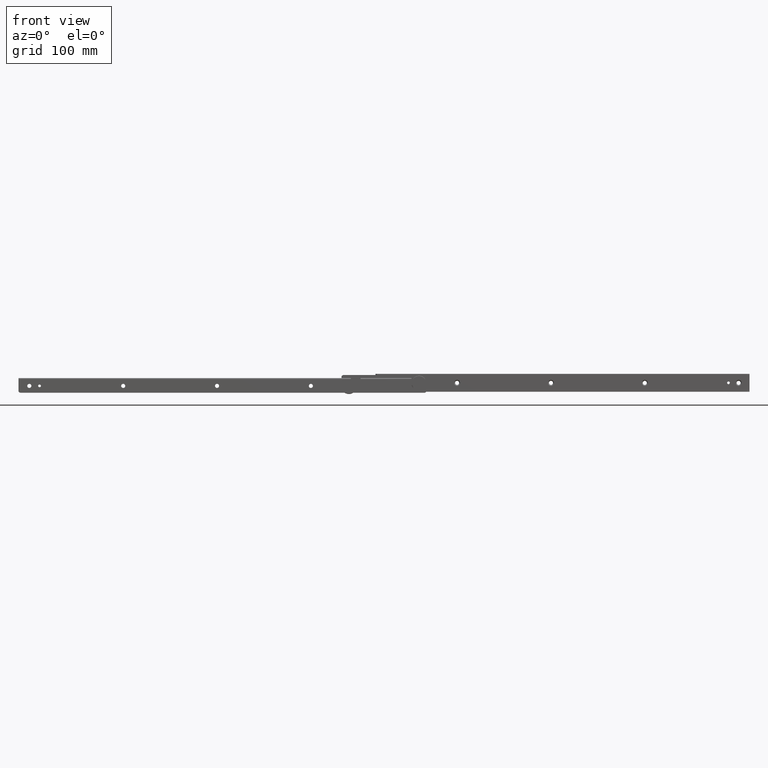
[diagram: clean part render]
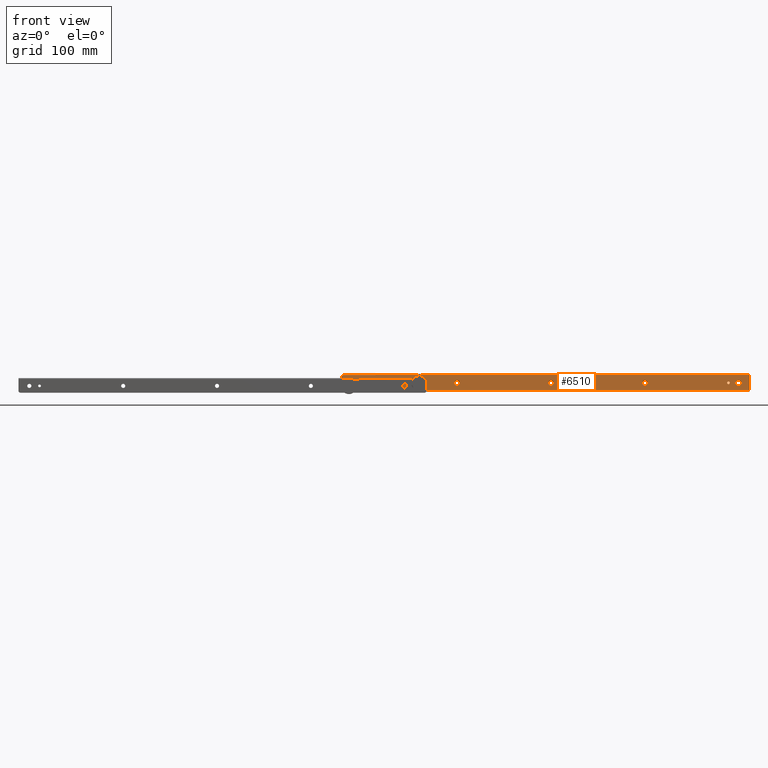
[diagram: same view with one face highlighted and labeled with its STEP entity id]
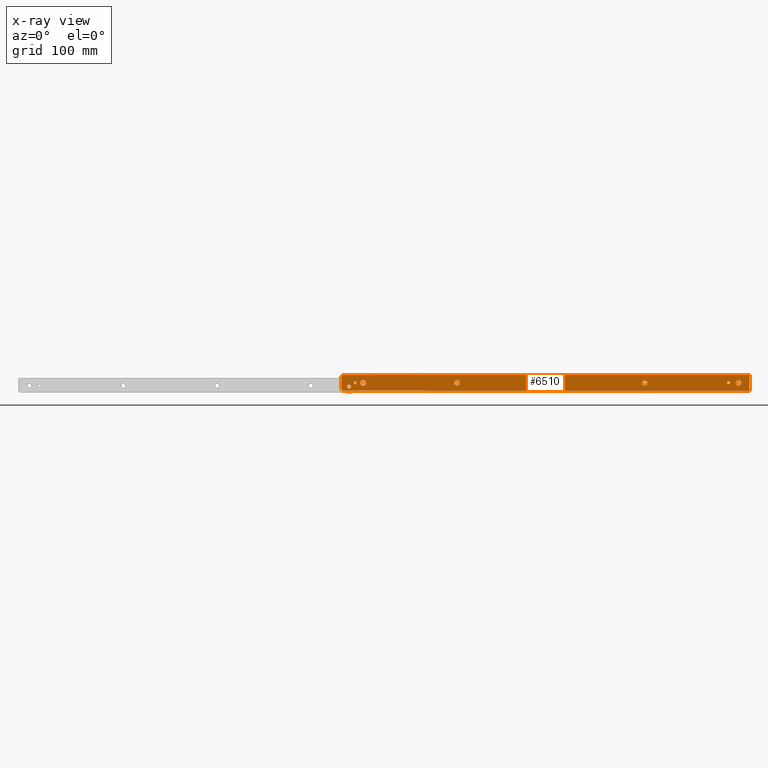
[diagram: x-ray of the same camera — body ghosted, the highlighted face saturated]
A machine part, front view. The second image highlights one B-rep face of the part: STEP entity #6510.
The next image is the same camera in x-ray: the body ghosted, the highlighted face saturated — about 0% of this face is hidden behind the body in this view.
In plain terms, the highlighted face is a freeform B-spline surface patch.
Its self-contained STEP definition (entity closure, byte-faithful):
#4188=CARTESIAN_POINT('',(27.733255280629191,-1.600000001199631,-7.633750417427490));
#4189=VERTEX_POINT('',#4188);
#4195=CARTESIAN_POINT('',(32.0,-1.599999999999910,-11.399999999999800));
#4196=VERTEX_POINT('',#4195);
#4197=CARTESIAN_POINT('',(32.0,-1.599999999999910,-11.399999999999800));
#4198=CARTESIAN_POINT('',(28.204396034349859,-1.599999999999911,-11.399999999999798));
#4199=CARTESIAN_POINT('',(27.733255280629191,-1.600000001199631,-7.633750417427490));
#4207=(BOUNDED_CURVE()B_SPLINE_CURVE(2,(#4197,#4198,#4199),.UNSPECIFIED.,.F.,.U.)B_SPLINE_CURVE_WITH_KNOTS((3,3),(0.500000000000000,0.728526070368158),.UNSPECIFIED.)CURVE()GEOMETRIC_REPRESENTATION_ITEM()RATIONAL_B_SPLINE_CURVE((1.0,0.732265054668323,0.954005428991700))REPRESENTATION_ITEM(''));
#4208=EDGE_CURVE('',#4196,#4189,#4207,.T.);
#4210=CARTESIAN_POINT('',(36.299836272195890,-1.600000004000267,-7.062475870950351));
#4211=VERTEX_POINT('',#4210);
#4212=CARTESIAN_POINT('',(36.299836272195890,-1.600000004000267,-7.062475870950351));
#4213=CARTESIAN_POINT('',(36.299999999999997,-1.599999999999910,-7.081237565091199));
#4214=CARTESIAN_POINT('',(36.299999999999997,-1.599999999999910,-7.099999999999799));
#4215=CARTESIAN_POINT('',(36.299999999999997,-1.599999999999911,-11.399999999999798));
#4216=CARTESIAN_POINT('',(32.0,-1.599999999999910,-11.399999999999800));
#4224=(BOUNDED_CURVE()B_SPLINE_CURVE(2,(#4212,#4213,#4214,#4215,#4216),.UNSPECIFIED.,.F.,.U.)B_SPLINE_CURVE_WITH_KNOTS((3,2,3),(0.248460103503857,0.250000000000000,0.500000000000000),.UNSPECIFIED.)CURVE()GEOMETRIC_REPRESENTATION_ITEM()RATIONAL_B_SPLINE_CURVE((0.996414023098886,0.998195899034421,1.0,0.707106781186547,1.0))REPRESENTATION_ITEM(''));
#4225=EDGE_CURVE('',#4211,#4196,#4224,.T.);
#4305=CARTESIAN_POINT('',(32.0,-1.599999999999910,-2.799999999999799));
#4306=VERTEX_POINT('',#4305);
#4307=CARTESIAN_POINT('',(32.0,-1.599999999999910,-2.799999999999799));
#4308=CARTESIAN_POINT('',(36.262638153256646,-1.599999999999910,-2.799999999999800));
#4309=CARTESIAN_POINT('',(36.299836272195897,-1.600000004000267,-7.062475870950351));
#4317=(BOUNDED_CURVE()B_SPLINE_CURVE(2,(#4307,#4308,#4309),.UNSPECIFIED.,.F.,.U.)B_SPLINE_CURVE_WITH_KNOTS((3,3),(0.0,0.248460103503857),.UNSPECIFIED.)CURVE()GEOMETRIC_REPRESENTATION_ITEM()RATIONAL_B_SPLINE_CURVE((1.0,0.708910882152127,0.996414023098886))REPRESENTATION_ITEM(''));
#4318=EDGE_CURVE('',#4306,#4211,#4317,.T.);
#4320=CARTESIAN_POINT('',(27.733255280629191,-1.600000001199631,-7.633750417427490));
#4321=CARTESIAN_POINT('',(27.700000000000003,-1.599999999999910,-7.367911196855158));
#4322=CARTESIAN_POINT('',(27.699999999999999,-1.599999999999910,-7.099999999999799));
#4323=CARTESIAN_POINT('',(27.700000000000006,-1.599999999999911,-2.799999999999800));
#4324=CARTESIAN_POINT('',(32.0,-1.599999999999910,-2.799999999999799));
#4332=(BOUNDED_CURVE()B_SPLINE_CURVE(2,(#4320,#4321,#4322,#4323,#4324),.UNSPECIFIED.,.F.,.U.)B_SPLINE_CURVE_WITH_KNOTS((3,2,3),(0.728526070368159,0.750000000000000,1.0),.UNSPECIFIED.)CURVE()GEOMETRIC_REPRESENTATION_ITEM()RATIONAL_B_SPLINE_CURVE((0.954005428991701,0.974841726518226,1.0,0.707106781186547,1.0))REPRESENTATION_ITEM(''));
#4333=EDGE_CURVE('',#4189,#4306,#4332,.T.);
#4374=CARTESIAN_POINT('',(165.733255280629210,-1.600000001199630,-7.633750417427690));
#4375=VERTEX_POINT('',#4374);
#4381=CARTESIAN_POINT('',(170.0,-1.599999999999910,-11.400000000000000));
#4382=VERTEX_POINT('',#4381);
#4383=CARTESIAN_POINT('',(170.0,-1.599999999999910,-11.400000000000000));
#4384=CARTESIAN_POINT('',(166.204396034349940,-1.599999999999911,-11.399999999999999));
#4385=CARTESIAN_POINT('',(165.733255280629210,-1.600000001199631,-7.633750417427690));
#4393=(BOUNDED_CURVE()B_SPLINE_CURVE(2,(#4383,#4384,#4385),.UNSPECIFIED.,.F.,.U.)B_SPLINE_CURVE_WITH_KNOTS((3,3),(0.500000000000000,0.728526070368158),.UNSPECIFIED.)CURVE()GEOMETRIC_REPRESENTATION_ITEM()RATIONAL_B_SPLINE_CURVE((1.0,0.732265054668323,0.954005428991700))REPRESENTATION_ITEM(''));
#4394=EDGE_CURVE('',#4382,#4375,#4393,.T.);
#4396=CARTESIAN_POINT('',(174.299836272195900,-1.600000004000269,-7.062475870950552));
#4397=VERTEX_POINT('',#4396);
#4398=CARTESIAN_POINT('',(174.299836272195850,-1.600000004000269,-7.062475870950552));
#4399=CARTESIAN_POINT('',(174.300000000000070,-1.599999999999910,-7.081237565091401));
#4400=CARTESIAN_POINT('',(174.300000000000010,-1.599999999999910,-7.100000000000001));
#4401=CARTESIAN_POINT('',(174.299999999999950,-1.599999999999911,-11.399999999999999));
#4402=CARTESIAN_POINT('',(170.0,-1.599999999999910,-11.400000000000000));
#4410=(BOUNDED_CURVE()B_SPLINE_CURVE(2,(#4398,#4399,#4400,#4401,#4402),.UNSPECIFIED.,.F.,.U.)B_SPLINE_CURVE_WITH_KNOTS((3,2,3),(0.248460103503857,0.250000000000000,0.500000000000000),.UNSPECIFIED.)CURVE()GEOMETRIC_REPRESENTATION_ITEM()RATIONAL_B_SPLINE_CURVE((0.996414023098886,0.998195899034421,1.0,0.707106781186547,1.0))REPRESENTATION_ITEM(''));
#4411=EDGE_CURVE('',#4397,#4382,#4410,.T.);
#4491=CARTESIAN_POINT('',(170.0,-1.599999999999910,-2.800000000000000));
#4492=VERTEX_POINT('',#4491);
#4493=CARTESIAN_POINT('',(170.0,-1.599999999999910,-2.800000000000000));
#4494=CARTESIAN_POINT('',(174.262638153256740,-1.599999999999910,-2.800000000000000));
#4495=CARTESIAN_POINT('',(174.299836272195880,-1.600000004000270,-7.062475870950552));
#4503=(BOUNDED_CURVE()B_SPLINE_CURVE(2,(#4493,#4494,#4495),.UNSPECIFIED.,.F.,.U.)B_SPLINE_CURVE_WITH_KNOTS((3,3),(0.0,0.248460103503857),.UNSPECIFIED.)CURVE()GEOMETRIC_REPRESENTATION_ITEM()RATIONAL_B_SPLINE_CURVE((1.0,0.708910882152127,0.996414023098886))REPRESENTATION_ITEM(''));
#4504=EDGE_CURVE('',#4492,#4397,#4503,.T.);
#4506=CARTESIAN_POINT('',(165.733255280629180,-1.600000001199631,-7.633750417427690));
#4507=CARTESIAN_POINT('',(165.699999999999990,-1.599999999999910,-7.367911196855359));
#4508=CARTESIAN_POINT('',(165.699999999999990,-1.599999999999910,-7.100000000000001));
#4509=CARTESIAN_POINT('',(165.699999999999960,-1.599999999999911,-2.800000000000000));
#4510=CARTESIAN_POINT('',(170.0,-1.599999999999910,-2.800000000000000));
#4518=(BOUNDED_CURVE()B_SPLINE_CURVE(2,(#4506,#4507,#4508,#4509,#4510),.UNSPECIFIED.,.F.,.U.)B_SPLINE_CURVE_WITH_KNOTS((3,2,3),(0.728526070368159,0.750000000000000,1.0),.UNSPECIFIED.)CURVE()GEOMETRIC_REPRESENTATION_ITEM()RATIONAL_B_SPLINE_CURVE((0.954005428991701,0.974841726518226,1.0,0.707106781186547,1.0))REPRESENTATION_ITEM(''));
#4519=EDGE_CURVE('',#4375,#4492,#4518,.T.);
#4560=CARTESIAN_POINT('',(303.733255280629180,-1.600000001199630,-7.633750417427690));
#4561=VERTEX_POINT('',#4560);
#4567=CARTESIAN_POINT('',(308.0,-1.599999999999910,-11.400000000000000));
#4568=VERTEX_POINT('',#4567);
#4569=CARTESIAN_POINT('',(308.0,-1.599999999999910,-11.400000000000000));
#4570=CARTESIAN_POINT('',(304.204396034349880,-1.599999999999911,-11.399999999999999));
#4571=CARTESIAN_POINT('',(303.733255280629120,-1.600000001199631,-7.633750417427690));
#4579=(BOUNDED_CURVE()B_SPLINE_CURVE(2,(#4569,#4570,#4571),.UNSPECIFIED.,.F.,.U.)B_SPLINE_CURVE_WITH_KNOTS((3,3),(0.500000000000000,0.728526070368158),.UNSPECIFIED.)CURVE()GEOMETRIC_REPRESENTATION_ITEM()RATIONAL_B_SPLINE_CURVE((1.0,0.732265054668323,0.954005428991700))REPRESENTATION_ITEM(''));
#4580=EDGE_CURVE('',#4568,#4561,#4579,.T.);
#4582=CARTESIAN_POINT('',(312.299836272195880,-1.600000004000258,-7.062475870950553));
#4583=VERTEX_POINT('',#4582);
#4584=CARTESIAN_POINT('',(312.299836272195930,-1.600000004000258,-7.062475870950553));
#4585=CARTESIAN_POINT('',(312.300000000000130,-1.599999999999911,-7.081237565091401));
#4586=CARTESIAN_POINT('',(312.300000000000010,-1.599999999999910,-7.100000000000001));
#4587=CARTESIAN_POINT('',(312.300000000000070,-1.599999999999911,-11.399999999999999));
#4588=CARTESIAN_POINT('',(308.0,-1.599999999999910,-11.400000000000000));
#4596=(BOUNDED_CURVE()B_SPLINE_CURVE(2,(#4584,#4585,#4586,#4587,#4588),.UNSPECIFIED.,.F.,.U.)B_SPLINE_CURVE_WITH_KNOTS((3,2,3),(0.248460103503857,0.250000000000000,0.500000000000000),.UNSPECIFIED.)CURVE()GEOMETRIC_REPRESENTATION_ITEM()RATIONAL_B_SPLINE_CURVE((0.996414023098886,0.998195899034421,1.0,0.707106781186547,1.0))REPRESENTATION_ITEM(''));
#4597=EDGE_CURVE('',#4583,#4568,#4596,.T.);
#4677=CARTESIAN_POINT('',(308.0,-1.599999999999910,-2.800000000000000));
#4678=VERTEX_POINT('',#4677);
#4679=CARTESIAN_POINT('',(308.0,-1.599999999999910,-2.800000000000000));
#4680=CARTESIAN_POINT('',(312.262638153256660,-1.599999999999910,-2.800000000000001));
#4681=CARTESIAN_POINT('',(312.299836272195880,-1.600000004000258,-7.062475870950553));
#4689=(BOUNDED_CURVE()B_SPLINE_CURVE(2,(#4679,#4680,#4681),.UNSPECIFIED.,.F.,.U.)B_SPLINE_CURVE_WITH_KNOTS((3,3),(0.0,0.248460103503857),.UNSPECIFIED.)CURVE()GEOMETRIC_REPRESENTATION_ITEM()RATIONAL_B_SPLINE_CURVE((1.0,0.708910882152127,0.996414023098886))REPRESENTATION_ITEM(''));
#4690=EDGE_CURVE('',#4678,#4583,#4689,.T.);
#4692=CARTESIAN_POINT('',(303.733255280629120,-1.600000001199631,-7.633750417427690));
#4693=CARTESIAN_POINT('',(303.699999999999990,-1.599999999999910,-7.367911196855359));
#4694=CARTESIAN_POINT('',(303.699999999999990,-1.599999999999910,-7.100000000000001));
#4695=CARTESIAN_POINT('',(303.700000000000050,-1.599999999999911,-2.800000000000000));
#4696=CARTESIAN_POINT('',(308.0,-1.599999999999910,-2.800000000000000));
#4704=(BOUNDED_CURVE()B_SPLINE_CURVE(2,(#4692,#4693,#4694,#4695,#4696),.UNSPECIFIED.,.F.,.U.)B_SPLINE_CURVE_WITH_KNOTS((3,2,3),(0.728526070368159,0.750000000000000,1.0),.UNSPECIFIED.)CURVE()GEOMETRIC_REPRESENTATION_ITEM()RATIONAL_B_SPLINE_CURVE((0.954005428991701,0.974841726518226,1.0,0.707106781186547,1.0))REPRESENTATION_ITEM(''));
#4705=EDGE_CURVE('',#4561,#4678,#4704,.T.);
#4746=CARTESIAN_POINT('',(441.733255280629180,-1.600000001199608,-7.633750417427683));
#4747=VERTEX_POINT('',#4746);
#4753=CARTESIAN_POINT('',(446.0,-1.599999999999910,-11.400000000000000));
#4754=VERTEX_POINT('',#4753);
#4755=CARTESIAN_POINT('',(446.0,-1.599999999999910,-11.400000000000000));
#4756=CARTESIAN_POINT('',(442.204396034349880,-1.599999999999911,-11.399999999999999));
#4757=CARTESIAN_POINT('',(441.733255280629240,-1.600000001199608,-7.633750417427683));
#4765=(BOUNDED_CURVE()B_SPLINE_CURVE(2,(#4755,#4756,#4757),.UNSPECIFIED.,.F.,.U.)B_SPLINE_CURVE_WITH_KNOTS((3,3),(0.500000000000000,0.728526070368158),.UNSPECIFIED.)CURVE()GEOMETRIC_REPRESENTATION_ITEM()RATIONAL_B_SPLINE_CURVE((1.0,0.732265054668323,0.954005428991700))REPRESENTATION_ITEM(''));
#4766=EDGE_CURVE('',#4754,#4747,#4765,.T.);
#4768=CARTESIAN_POINT('',(450.299836272195880,-1.600000004000271,-7.062475870950552));
#4769=VERTEX_POINT('',#4768);
#4770=CARTESIAN_POINT('',(450.299836272195930,-1.600000004000271,-7.062475870950552));
#4771=CARTESIAN_POINT('',(450.299999999999950,-1.599999999999910,-7.081237565091401));
#4772=CARTESIAN_POINT('',(450.300000000000010,-1.599999999999910,-7.100000000000001));
#4773=CARTESIAN_POINT('',(450.299999999999950,-1.599999999999911,-11.399999999999999));
#4774=CARTESIAN_POINT('',(446.0,-1.599999999999910,-11.400000000000000));
#4782=(BOUNDED_CURVE()B_SPLINE_CURVE(2,(#4770,#4771,#4772,#4773,#4774),.UNSPECIFIED.,.F.,.U.)B_SPLINE_CURVE_WITH_KNOTS((3,2,3),(0.248460103503857,0.250000000000000,0.500000000000000),.UNSPECIFIED.)CURVE()GEOMETRIC_REPRESENTATION_ITEM()RATIONAL_B_SPLINE_CURVE((0.996414023098886,0.998195899034421,1.0,0.707106781186547,1.0))REPRESENTATION_ITEM(''));
#4783=EDGE_CURVE('',#4769,#4754,#4782,.T.);
#4863=CARTESIAN_POINT('',(446.0,-1.599999999999910,-2.800000000000000));
#4864=VERTEX_POINT('',#4863);
#4865=CARTESIAN_POINT('',(446.0,-1.599999999999910,-2.800000000000000));
#4866=CARTESIAN_POINT('',(450.262638153256720,-1.599999999999910,-2.800000000000000));
#4867=CARTESIAN_POINT('',(450.299836272195880,-1.600000004000272,-7.062475870950552));
#4875=(BOUNDED_CURVE()B_SPLINE_CURVE(2,(#4865,#4866,#4867),.UNSPECIFIED.,.F.,.U.)B_SPLINE_CURVE_WITH_KNOTS((3,3),(0.0,0.248460103503857),.UNSPECIFIED.)CURVE()GEOMETRIC_REPRESENTATION_ITEM()RATIONAL_B_SPLINE_CURVE((1.0,0.708910882152127,0.996414023098886))REPRESENTATION_ITEM(''));
#4876=EDGE_CURVE('',#4864,#4769,#4875,.T.);
#4878=CARTESIAN_POINT('',(441.733255280629240,-1.600000001199608,-7.633750417427683));
#4879=CARTESIAN_POINT('',(441.700000000000050,-1.599999999999910,-7.367911196855354));
#4880=CARTESIAN_POINT('',(441.699999999999990,-1.599999999999910,-7.100000000000001));
#4881=CARTESIAN_POINT('',(441.699999999999930,-1.599999999999911,-2.800000000000000));
#4882=CARTESIAN_POINT('',(446.0,-1.599999999999910,-2.800000000000000));
#4890=(BOUNDED_CURVE()B_SPLINE_CURVE(2,(#4878,#4879,#4880,#4881,#4882),.UNSPECIFIED.,.F.,.U.)B_SPLINE_CURVE_WITH_KNOTS((3,2,3),(0.728526070368159,0.750000000000000,1.0),.UNSPECIFIED.)CURVE()GEOMETRIC_REPRESENTATION_ITEM()RATIONAL_B_SPLINE_CURVE((0.954005428991702,0.974841726518226,1.0,0.707106781186547,1.0))REPRESENTATION_ITEM(''));
#4891=EDGE_CURVE('',#4747,#4864,#4890,.T.);
#4932=CARTESIAN_POINT('',(579.733255280629240,-1.600000001199665,-7.633750417427704));
#4933=VERTEX_POINT('',#4932);
#4939=CARTESIAN_POINT('',(584.0,-1.599999999999910,-11.400000000000000));
#4940=VERTEX_POINT('',#4939);
#4941=CARTESIAN_POINT('',(584.0,-1.599999999999910,-11.400000000000000));
#4942=CARTESIAN_POINT('',(580.204396034349880,-1.599999999999911,-11.399999999999999));
#4943=CARTESIAN_POINT('',(579.733255280629240,-1.600000001199665,-7.633750417427704));
#4951=(BOUNDED_CURVE()B_SPLINE_CURVE(2,(#4941,#4942,#4943),.UNSPECIFIED.,.F.,.U.)B_SPLINE_CURVE_WITH_KNOTS((3,3),(0.500000000000000,0.728526070368158),.UNSPECIFIED.)CURVE()GEOMETRIC_REPRESENTATION_ITEM()RATIONAL_B_SPLINE_CURVE((1.0,0.732265054668323,0.954005428991700))REPRESENTATION_ITEM(''));
#4952=EDGE_CURVE('',#4940,#4933,#4951,.T.);
#4954=CARTESIAN_POINT('',(588.299836272195760,-1.600000004000249,-7.062475870950552));
#4955=VERTEX_POINT('',#4954);
#4956=CARTESIAN_POINT('',(588.299836272195760,-1.600000004000248,-7.062475870950552));
#4957=CARTESIAN_POINT('',(588.299999999999950,-1.599999999999910,-7.081237565091399));
#4958=CARTESIAN_POINT('',(588.299999999999950,-1.599999999999910,-7.100000000000001));
#4959=CARTESIAN_POINT('',(588.299999999999950,-1.599999999999911,-11.399999999999999));
#4960=CARTESIAN_POINT('',(584.0,-1.599999999999910,-11.400000000000000));
#4968=(BOUNDED_CURVE()B_SPLINE_CURVE(2,(#4956,#4957,#4958,#4959,#4960),.UNSPECIFIED.,.F.,.U.)B_SPLINE_CURVE_WITH_KNOTS((3,2,3),(0.248460103503857,0.250000000000000,0.500000000000000),.UNSPECIFIED.)CURVE()GEOMETRIC_REPRESENTATION_ITEM()RATIONAL_B_SPLINE_CURVE((0.996414023098886,0.998195899034421,1.0,0.707106781186547,1.0))REPRESENTATION_ITEM(''));
#4969=EDGE_CURVE('',#4955,#4940,#4968,.T.);
#5049=CARTESIAN_POINT('',(584.0,-1.599999999999910,-2.800000000000000));
#5050=VERTEX_POINT('',#5049);
#5051=CARTESIAN_POINT('',(584.0,-1.599999999999910,-2.800000000000000));
#5052=CARTESIAN_POINT('',(588.262638153256600,-1.599999999999911,-2.800000000000001));
#5053=CARTESIAN_POINT('',(588.299836272195760,-1.600000004000249,-7.062475870950552));
#5061=(BOUNDED_CURVE()B_SPLINE_CURVE(2,(#5051,#5052,#5053),.UNSPECIFIED.,.F.,.U.)B_SPLINE_CURVE_WITH_KNOTS((3,3),(0.0,0.248460103503857),.UNSPECIFIED.)CURVE()GEOMETRIC_REPRESENTATION_ITEM()RATIONAL_B_SPLINE_CURVE((1.0,0.708910882152127,0.996414023098886))REPRESENTATION_ITEM(''));
#5062=EDGE_CURVE('',#5050,#4955,#5061,.T.);
#5064=CARTESIAN_POINT('',(579.733255280629240,-1.600000001199666,-7.633750417427704));
#5065=CARTESIAN_POINT('',(579.700000000000050,-1.599999999999910,-7.367911196855369));
#5066=CARTESIAN_POINT('',(579.700000000000050,-1.599999999999910,-7.100000000000001));
#5067=CARTESIAN_POINT('',(579.700000000000050,-1.599999999999911,-2.800000000000000));
#5068=CARTESIAN_POINT('',(584.0,-1.599999999999910,-2.800000000000000));
#5076=(BOUNDED_CURVE()B_SPLINE_CURVE(2,(#5064,#5065,#5066,#5067,#5068),.UNSPECIFIED.,.F.,.U.)B_SPLINE_CURVE_WITH_KNOTS((3,2,3),(0.728526070368158,0.750000000000000,1.0),.UNSPECIFIED.)CURVE()GEOMETRIC_REPRESENTATION_ITEM()RATIONAL_B_SPLINE_CURVE((0.954005428991700,0.974841726518225,1.0,0.707106781186547,1.0))REPRESENTATION_ITEM(''));
#5077=EDGE_CURVE('',#4933,#5050,#5076,.T.);
#5135=CARTESIAN_POINT('',(13.940906133999270,-1.599999999999935,-12.831454338917970));
#5136=VERTEX_POINT('',#5135);
#5142=CARTESIAN_POINT('',(10.999999999999760,-1.599999999999935,-9.649999999999800));
#5143=VERTEX_POINT('',#5142);
#5144=CARTESIAN_POINT('',(13.940906133999270,-1.599999999999935,-12.831454338917970));
#5145=CARTESIAN_POINT('',(13.949999999999759,-1.599999999999936,-12.715905822223709));
#5146=CARTESIAN_POINT('',(13.949999999999759,-1.599999999999935,-12.599999999999801));
#5147=CARTESIAN_POINT('',(13.949999999999761,-1.599999999999935,-9.649999999999800));
#5148=CARTESIAN_POINT('',(10.999999999999760,-1.599999999999935,-9.649999999999800));
#5156=(BOUNDED_CURVE()B_SPLINE_CURVE(2,(#5144,#5145,#5146,#5147,#5148),.UNSPECIFIED.,.F.,.U.)B_SPLINE_CURVE_WITH_KNOTS((3,2,3),(0.736331299872550,0.750000000000000,1.0),.UNSPECIFIED.)CURVE()GEOMETRIC_REPRESENTATION_ITEM()RATIONAL_B_SPLINE_CURVE((0.969723354585300,0.983986121690701,1.0,0.707106781186548,1.0))REPRESENTATION_ITEM(''));
#5157=EDGE_CURVE('',#5136,#5143,#5156,.T.);
#5159=CARTESIAN_POINT('',(8.059093866000250,-1.599999999999935,-12.368545661081630));
#5160=VERTEX_POINT('',#5159);
#5161=CARTESIAN_POINT('',(10.999999999999760,-1.599999999999935,-9.649999999999800));
#5162=CARTESIAN_POINT('',(8.273048061738681,-1.599999999999935,-9.649999999999800));
#5163=CARTESIAN_POINT('',(8.059093866000250,-1.599999999999935,-12.368545661081631));
#5171=(BOUNDED_CURVE()B_SPLINE_CURVE(2,(#5161,#5162,#5163),.UNSPECIFIED.,.F.,.U.)B_SPLINE_CURVE_WITH_KNOTS((3,3),(0.0,0.236331299872549),.UNSPECIFIED.)CURVE()GEOMETRIC_REPRESENTATION_ITEM()RATIONAL_B_SPLINE_CURVE((1.0,0.723120659495847,0.969723354585299))REPRESENTATION_ITEM(''));
#5172=EDGE_CURVE('',#5143,#5160,#5171,.T.);
#5218=CARTESIAN_POINT('',(10.999999999999760,-1.599999999999935,-15.549999999999800));
#5219=VERTEX_POINT('',#5218);
#5220=CARTESIAN_POINT('',(8.059093866000250,-1.599999999999936,-12.368545661081628));
#5221=CARTESIAN_POINT('',(8.049999999999761,-1.599999999999935,-12.484094177775885));
#5222=CARTESIAN_POINT('',(8.049999999999761,-1.599999999999935,-12.599999999999801));
#5223=CARTESIAN_POINT('',(8.049999999999761,-1.599999999999935,-15.549999999999795));
#5224=CARTESIAN_POINT('',(10.999999999999760,-1.599999999999935,-15.549999999999800));
#5232=(BOUNDED_CURVE()B_SPLINE_CURVE(2,(#5220,#5221,#5222,#5223,#5224),.UNSPECIFIED.,.F.,.U.)B_SPLINE_CURVE_WITH_KNOTS((3,2,3),(0.236331299872549,0.250000000000000,0.500000000000000),.UNSPECIFIED.)CURVE()GEOMETRIC_REPRESENTATION_ITEM()RATIONAL_B_SPLINE_CURVE((0.969723354585300,0.983986121690701,1.0,0.707106781186548,1.0))REPRESENTATION_ITEM(''));
#5233=EDGE_CURVE('',#5160,#5219,#5232,.T.);
#5235=CARTESIAN_POINT('',(10.999999999999760,-1.599999999999935,-15.549999999999800));
#5236=CARTESIAN_POINT('',(13.726951938260848,-1.599999999999934,-15.549999999999800));
#5237=CARTESIAN_POINT('',(13.940906133999267,-1.599999999999934,-12.831454338917968));
#5245=(BOUNDED_CURVE()B_SPLINE_CURVE(2,(#5235,#5236,#5237),.UNSPECIFIED.,.F.,.U.)B_SPLINE_CURVE_WITH_KNOTS((3,3),(0.500000000000000,0.736331299872550),.UNSPECIFIED.)CURVE()GEOMETRIC_REPRESENTATION_ITEM()RATIONAL_B_SPLINE_CURVE((1.0,0.723120659495847,0.969723354585300))REPRESENTATION_ITEM(''));
#5246=EDGE_CURVE('',#5219,#5136,#5245,.T.);
#5317=CARTESIAN_POINT('',(21.993834596032819,-1.599999999999935,-7.256919099098090));
#5318=VERTEX_POINT('',#5317);
#5324=CARTESIAN_POINT('',(20.0,-1.599999999999935,-5.099999999999799));
#5325=VERTEX_POINT('',#5324);
#5326=CARTESIAN_POINT('',(21.993834596032823,-1.599999999999935,-7.256919099098090));
#5327=CARTESIAN_POINT('',(22.000000000000004,-1.599999999999935,-7.178581125869870));
#5328=CARTESIAN_POINT('',(22.0,-1.599999999999935,-7.099999999999799));
#5329=CARTESIAN_POINT('',(22.000000000000007,-1.599999999999935,-5.099999999999798));
#5330=CARTESIAN_POINT('',(20.0,-1.599999999999935,-5.099999999999799));
#5338=(BOUNDED_CURVE()B_SPLINE_CURVE(2,(#5326,#5327,#5328,#5329,#5330),.UNSPECIFIED.,.F.,.U.)B_SPLINE_CURVE_WITH_KNOTS((3,2,3),(0.736331144559496,0.750000000000000,1.0),.UNSPECIFIED.)CURVE()GEOMETRIC_REPRESENTATION_ITEM()RATIONAL_B_SPLINE_CURVE((0.969723030459033,0.983985939730139,1.0,0.707106781186548,1.0))REPRESENTATION_ITEM(''));
#5339=EDGE_CURVE('',#5318,#5325,#5338,.T.);
#5341=CARTESIAN_POINT('',(18.006165403967181,-1.599999999999935,-6.943080900901508));
#5342=VERTEX_POINT('',#5341);
#5343=CARTESIAN_POINT('',(20.0,-1.599999999999935,-5.099999999999799));
#5344=CARTESIAN_POINT('',(18.151220705108980,-1.599999999999935,-5.099999999999798));
#5345=CARTESIAN_POINT('',(18.006165403967184,-1.599999999999935,-6.943080900901508));
#5353=(BOUNDED_CURVE()B_SPLINE_CURVE(2,(#5343,#5344,#5345),.UNSPECIFIED.,.F.,.U.)B_SPLINE_CURVE_WITH_KNOTS((3,3),(0.0,0.236331144559496),.UNSPECIFIED.)CURVE()GEOMETRIC_REPRESENTATION_ITEM()RATIONAL_B_SPLINE_CURVE((1.0,0.723120841456408,0.969723030459033))REPRESENTATION_ITEM(''));
#5354=EDGE_CURVE('',#5325,#5342,#5353,.T.);
#5400=CARTESIAN_POINT('',(20.0,-1.599999999999935,-9.099999999999799));
#5401=VERTEX_POINT('',#5400);
#5402=CARTESIAN_POINT('',(18.006165403967184,-1.599999999999935,-6.943080900901508));
#5403=CARTESIAN_POINT('',(18.000000000000007,-1.599999999999936,-7.021418874129727));
#5404=CARTESIAN_POINT('',(18.0,-1.599999999999935,-7.099999999999799));
#5405=CARTESIAN_POINT('',(18.000000000000007,-1.599999999999935,-9.099999999999799));
#5406=CARTESIAN_POINT('',(20.0,-1.599999999999935,-9.099999999999799));
#5414=(BOUNDED_CURVE()B_SPLINE_CURVE(2,(#5402,#5403,#5404,#5405,#5406),.UNSPECIFIED.,.F.,.U.)B_SPLINE_CURVE_WITH_KNOTS((3,2,3),(0.236331144559496,0.250000000000000,0.500000000000000),.UNSPECIFIED.)CURVE()GEOMETRIC_REPRESENTATION_ITEM()RATIONAL_B_SPLINE_CURVE((0.969723030459033,0.983985939730140,1.0,0.707106781186548,1.0))REPRESENTATION_ITEM(''));
#5415=EDGE_CURVE('',#5342,#5401,#5414,.T.);
#5417=CARTESIAN_POINT('',(20.0,-1.599999999999935,-9.099999999999799));
#5418=CARTESIAN_POINT('',(21.848779294891028,-1.599999999999935,-9.099999999999799));
#5419=CARTESIAN_POINT('',(21.993834596032819,-1.599999999999935,-7.256919099098090));
#5427=(BOUNDED_CURVE()B_SPLINE_CURVE(2,(#5417,#5418,#5419),.UNSPECIFIED.,.F.,.U.)B_SPLINE_CURVE_WITH_KNOTS((3,3),(0.500000000000000,0.736331144559496),.UNSPECIFIED.)CURVE()GEOMETRIC_REPRESENTATION_ITEM()RATIONAL_B_SPLINE_CURVE((1.0,0.723120841456407,0.969723030459034))REPRESENTATION_ITEM(''));
#5428=EDGE_CURVE('',#5401,#5318,#5427,.T.);
#5499=CARTESIAN_POINT('',(570.993834596032800,-1.599999999999935,-7.256919099098292));
#5500=VERTEX_POINT('',#5499);
#5506=CARTESIAN_POINT('',(569.0,-1.599999999999935,-5.100000000000001));
#5507=VERTEX_POINT('',#5506);
#5508=CARTESIAN_POINT('',(570.993834596032800,-1.599999999999936,-7.256919099098292));
#5509=CARTESIAN_POINT('',(571.0,-1.599999999999935,-7.178581125870073));
#5510=CARTESIAN_POINT('',(571.0,-1.599999999999935,-7.100000000000001));
#5511=CARTESIAN_POINT('',(571.000000000000110,-1.599999999999935,-5.100000000000001));
#5512=CARTESIAN_POINT('',(569.0,-1.599999999999935,-5.100000000000001));
#5520=(BOUNDED_CURVE()B_SPLINE_CURVE(2,(#5508,#5509,#5510,#5511,#5512),.UNSPECIFIED.,.F.,.U.)B_SPLINE_CURVE_WITH_KNOTS((3,2,3),(0.736331144559495,0.750000000000000,1.0),.UNSPECIFIED.)CURVE()GEOMETRIC_REPRESENTATION_ITEM()RATIONAL_B_SPLINE_CURVE((0.969723030459033,0.983985939730139,1.0,0.707106781186548,1.0))REPRESENTATION_ITEM(''));
#5521=EDGE_CURVE('',#5500,#5507,#5520,.T.);
#5523=CARTESIAN_POINT('',(567.006165403967200,-1.599999999999935,-6.943080900901707));
#5524=VERTEX_POINT('',#5523);
#5525=CARTESIAN_POINT('',(569.0,-1.599999999999935,-5.100000000000001));
#5526=CARTESIAN_POINT('',(567.151220705109040,-1.599999999999936,-5.100000000000000));
#5527=CARTESIAN_POINT('',(567.006165403967200,-1.599999999999935,-6.943080900901707));
#5535=(BOUNDED_CURVE()B_SPLINE_CURVE(2,(#5525,#5526,#5527),.UNSPECIFIED.,.F.,.U.)B_SPLINE_CURVE_WITH_KNOTS((3,3),(0.0,0.236331144559495),.UNSPECIFIED.)CURVE()GEOMETRIC_REPRESENTATION_ITEM()RATIONAL_B_SPLINE_CURVE((1.0,0.723120841456408,0.969723030459032))REPRESENTATION_ITEM(''));
#5536=EDGE_CURVE('',#5507,#5524,#5535,.T.);
#5582=CARTESIAN_POINT('',(569.0,-1.599999999999935,-9.100000000000000));
#5583=VERTEX_POINT('',#5582);
#5584=CARTESIAN_POINT('',(567.006165403967200,-1.599999999999935,-6.943080900901707));
#5585=CARTESIAN_POINT('',(567.000000000000110,-1.599999999999935,-7.021418874129927));
#5586=CARTESIAN_POINT('',(567.0,-1.599999999999935,-7.100000000000001));
#5587=CARTESIAN_POINT('',(567.0,-1.599999999999935,-9.100000000000000));
#5588=CARTESIAN_POINT('',(569.0,-1.599999999999935,-9.100000000000000));
#5596=(BOUNDED_CURVE()B_SPLINE_CURVE(2,(#5584,#5585,#5586,#5587,#5588),.UNSPECIFIED.,.F.,.U.)B_SPLINE_CURVE_WITH_KNOTS((3,2,3),(0.236331144559495,0.250000000000000,0.500000000000000),.UNSPECIFIED.)CURVE()GEOMETRIC_REPRESENTATION_ITEM()RATIONAL_B_SPLINE_CURVE((0.969723030459033,0.983985939730139,1.0,0.707106781186548,1.0))REPRESENTATION_ITEM(''));
#5597=EDGE_CURVE('',#5524,#5583,#5596,.T.);
#5599=CARTESIAN_POINT('',(569.0,-1.599999999999935,-9.100000000000000));
#5600=CARTESIAN_POINT('',(570.848779294890960,-1.599999999999935,-9.100000000000000));
#5601=CARTESIAN_POINT('',(570.993834596032800,-1.599999999999935,-7.256919099098292));
#5609=(BOUNDED_CURVE()B_SPLINE_CURVE(2,(#5599,#5600,#5601),.UNSPECIFIED.,.F.,.U.)B_SPLINE_CURVE_WITH_KNOTS((3,3),(0.500000000000000,0.736331144559496),.UNSPECIFIED.)CURVE()GEOMETRIC_REPRESENTATION_ITEM()RATIONAL_B_SPLINE_CURVE((1.0,0.723120841456407,0.969723030459034))REPRESENTATION_ITEM(''));
#5610=EDGE_CURVE('',#5583,#5500,#5609,.T.);
#5887=CARTESIAN_POINT('',(3.0,-1.599999999999910,4.400000000000205));
#5888=VERTEX_POINT('',#5887);
#5889=CARTESIAN_POINT('',(0.0,-1.599999999999910,1.400000000000204));
#5890=VERTEX_POINT('',#5889);
#5891=CARTESIAN_POINT('',(3.0,-1.599999999999910,4.400000000000204));
#5892=CARTESIAN_POINT('',(0.0,-1.599999999999911,4.400000000000205));
#5893=CARTESIAN_POINT('',(0.0,-1.599999999999910,1.400000000000204));
#5901=(BOUNDED_CURVE()B_SPLINE_CURVE(2,(#5891,#5892,#5893),.UNSPECIFIED.,.F.,.U.)CURVE()GEOMETRIC_REPRESENTATION_ITEM()QUASI_UNIFORM_CURVE()RATIONAL_B_SPLINE_CURVE((1.0,0.707106781186548,1.0))REPRESENTATION_ITEM(''));
#5902=EDGE_CURVE('',#5888,#5890,#5901,.T.);
#5967=CARTESIAN_POINT('',(3.0,-1.599999999999910,-18.600000000000001));
#5968=VERTEX_POINT('',#5967);
#5974=CARTESIAN_POINT('',(0.0,-1.599999999999910,-15.600000000000000));
#5975=VERTEX_POINT('',#5974);
#5976=CARTESIAN_POINT('',(0.0,-1.599999999999910,-15.600000000000000));
#5977=CARTESIAN_POINT('',(0.0,-1.599999999999911,-18.599999999999991));
#5978=CARTESIAN_POINT('',(3.0,-1.599999999999910,-18.600000000000001));
#5986=(BOUNDED_CURVE()B_SPLINE_CURVE(2,(#5976,#5977,#5978),.UNSPECIFIED.,.F.,.U.)CURVE()GEOMETRIC_REPRESENTATION_ITEM()QUASI_UNIFORM_CURVE()RATIONAL_B_SPLINE_CURVE((1.0,0.707106781186548,1.0))REPRESENTATION_ITEM(''));
#5987=EDGE_CURVE('',#5975,#5968,#5986,.T.);
#6010=CARTESIAN_POINT('',(50.0,-1.599999999999935,4.400000000000205));
#6011=VERTEX_POINT('',#6010);
#6012=CARTESIAN_POINT('',(50.0,-1.599999999999935,4.400000000000205));
#6013=CARTESIAN_POINT('',(3.0,-1.599999999999910,4.400000000000205));
#6014=QUASI_UNIFORM_CURVE('',1,(#6012,#6013),.UNSPECIFIED.,.F.,.U.);
#6015=EDGE_CURVE('',#6011,#5888,#6014,.T.);
#6065=CARTESIAN_POINT('',(22.0,-1.599999999999935,-18.600000000000001));
#6066=VERTEX_POINT('',#6065);
#6067=CARTESIAN_POINT('',(3.0,-1.599999999999910,-18.600000000000001));
#6068=CARTESIAN_POINT('',(22.0,-1.599999999999935,-18.600000000000001));
#6069=QUASI_UNIFORM_CURVE('',1,(#6067,#6068),.UNSPECIFIED.,.F.,.U.);
#6070=EDGE_CURVE('',#5968,#6066,#6069,.T.);
#6134=CARTESIAN_POINT('',(0.0,-1.599999999999910,1.400000000000204));
#6135=CARTESIAN_POINT('',(0.0,-1.599999999999910,-15.600000000000000));
#6136=QUASI_UNIFORM_CURVE('',1,(#6134,#6135),.UNSPECIFIED.,.F.,.U.);
#6137=EDGE_CURVE('',#5890,#5975,#6136,.T.);
#6156=CARTESIAN_POINT('',(600.0,-1.599999999999910,4.400000000000205));
#6157=VERTEX_POINT('',#6156);
#6163=CARTESIAN_POINT('',(600.0,-1.599999999999910,-18.600000000000001));
#6164=VERTEX_POINT('',#6163);
#6165=CARTESIAN_POINT('',(600.0,-1.599999999999910,4.400000000000205));
#6166=CARTESIAN_POINT('',(600.0,-1.599999999999910,-18.600000000000001));
#6167=QUASI_UNIFORM_CURVE('',1,(#6165,#6166),.UNSPECIFIED.,.F.,.U.);
#6168=EDGE_CURVE('',#6157,#6164,#6167,.T.);
#6321=CARTESIAN_POINT('',(600.0,-1.599999999999910,-18.600000000000001));
#6322=CARTESIAN_POINT('',(22.0,-1.599999999999935,-18.600000000000001));
#6323=QUASI_UNIFORM_CURVE('',1,(#6321,#6322),.UNSPECIFIED.,.F.,.U.);
#6324=EDGE_CURVE('',#6164,#6066,#6323,.T.);
#6345=CARTESIAN_POINT('',(600.0,-1.599999999999910,4.400000000000205));
#6346=CARTESIAN_POINT('',(50.0,-1.599999999999935,4.400000000000205));
#6347=QUASI_UNIFORM_CURVE('',1,(#6345,#6346),.UNSPECIFIED.,.F.,.U.);
#6348=EDGE_CURVE('',#6157,#6011,#6347,.T.);
#6447=CARTESIAN_POINT('',(-29.969998837083590,-1.599999999999910,-19.748850387236640));
#6448=CARTESIAN_POINT('',(-29.969998837083590,-1.599999999999910,5.548850592872861));
#6449=CARTESIAN_POINT('',(629.970014930337700,-1.599999999999910,-19.748850387236640));
#6450=CARTESIAN_POINT('',(629.970014930337700,-1.599999999999910,5.548850592872861));
#6451=B_SPLINE_SURFACE_WITH_KNOTS('',1,1,((#6447,#6449),(#6448,#6450)),.UNSPECIFIED.,.F.,.F.,.U.,(2,2),(2,2),(0.0,25.297700980109500),(0.0,659.940013767421310),.UNSPECIFIED.);
#6452=ORIENTED_EDGE('',*,*,#6137,.T.);
#6453=ORIENTED_EDGE('',*,*,#5987,.T.);
#6454=ORIENTED_EDGE('',*,*,#6070,.T.);
#6455=ORIENTED_EDGE('',*,*,#6324,.F.);
#6456=ORIENTED_EDGE('',*,*,#6168,.F.);
#6457=ORIENTED_EDGE('',*,*,#6348,.T.);
#6458=ORIENTED_EDGE('',*,*,#6015,.T.);
#6459=ORIENTED_EDGE('',*,*,#5902,.T.);
#6460=EDGE_LOOP('',(#6452,#6453,#6454,#6455,#6456,#6457,#6458,#6459));
#6461=FACE_OUTER_BOUND('',#6460,.T.);
#6462=ORIENTED_EDGE('',*,*,#5610,.F.);
#6463=ORIENTED_EDGE('',*,*,#5597,.F.);
#6464=ORIENTED_EDGE('',*,*,#5536,.F.);
#6465=ORIENTED_EDGE('',*,*,#5521,.F.);
#6466=EDGE_LOOP('',(#6462,#6463,#6464,#6465));
#6467=FACE_BOUND('',#6466,.T.);
#6468=ORIENTED_EDGE('',*,*,#5428,.F.);
#6469=ORIENTED_EDGE('',*,*,#5415,.F.);
#6470=ORIENTED_EDGE('',*,*,#5354,.F.);
#6471=ORIENTED_EDGE('',*,*,#5339,.F.);
#6472=EDGE_LOOP('',(#6468,#6469,#6470,#6471));
#6473=FACE_BOUND('',#6472,.T.);
#6474=ORIENTED_EDGE('',*,*,#5246,.F.);
#6475=ORIENTED_EDGE('',*,*,#5233,.F.);
#6476=ORIENTED_EDGE('',*,*,#5172,.F.);
#6477=ORIENTED_EDGE('',*,*,#5157,.F.);
#6478=EDGE_LOOP('',(#6474,#6475,#6476,#6477));
#6479=FACE_BOUND('',#6478,.T.);
#6480=ORIENTED_EDGE('',*,*,#5062,.T.);
#6481=ORIENTED_EDGE('',*,*,#4969,.T.);
#6482=ORIENTED_EDGE('',*,*,#4952,.T.);
#6483=ORIENTED_EDGE('',*,*,#5077,.T.);
#6484=EDGE_LOOP('',(#6480,#6481,#6482,#6483));
#6485=FACE_BOUND('',#6484,.T.);
#6486=ORIENTED_EDGE('',*,*,#4876,.T.);
#6487=ORIENTED_EDGE('',*,*,#4783,.T.);
#6488=ORIENTED_EDGE('',*,*,#4766,.T.);
#6489=ORIENTED_EDGE('',*,*,#4891,.T.);
#6490=EDGE_LOOP('',(#6486,#6487,#6488,#6489));
#6491=FACE_BOUND('',#6490,.T.);
#6492=ORIENTED_EDGE('',*,*,#4690,.T.);
#6493=ORIENTED_EDGE('',*,*,#4597,.T.);
#6494=ORIENTED_EDGE('',*,*,#4580,.T.);
#6495=ORIENTED_EDGE('',*,*,#4705,.T.);
#6496=EDGE_LOOP('',(#6492,#6493,#6494,#6495));
#6497=FACE_BOUND('',#6496,.T.);
#6498=ORIENTED_EDGE('',*,*,#4504,.T.);
#6499=ORIENTED_EDGE('',*,*,#4411,.T.);
#6500=ORIENTED_EDGE('',*,*,#4394,.T.);
#6501=ORIENTED_EDGE('',*,*,#4519,.T.);
#6502=EDGE_LOOP('',(#6498,#6499,#6500,#6501));
#6503=FACE_BOUND('',#6502,.T.);
#6504=ORIENTED_EDGE('',*,*,#4318,.T.);
#6505=ORIENTED_EDGE('',*,*,#4225,.T.);
#6506=ORIENTED_EDGE('',*,*,#4208,.T.);
#6507=ORIENTED_EDGE('',*,*,#4333,.T.);
#6508=EDGE_LOOP('',(#6504,#6505,#6506,#6507));
#6509=FACE_BOUND('',#6508,.T.);
#6510=ADVANCED_FACE('',(#6461,#6467,#6473,#6479,#6485,#6491,#6497,#6503,#6509),#6451,.F.);